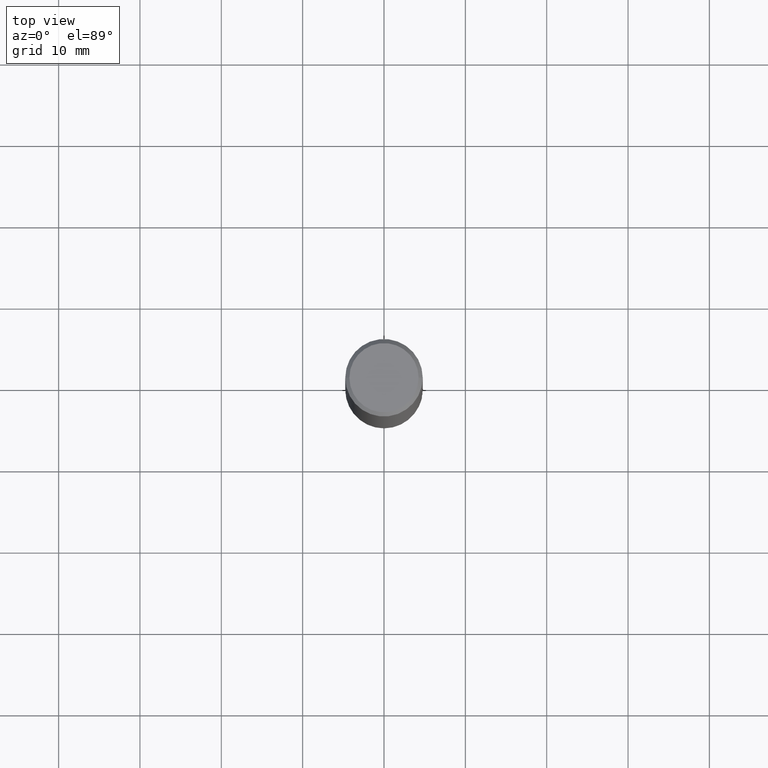
[diagram: clean part render]
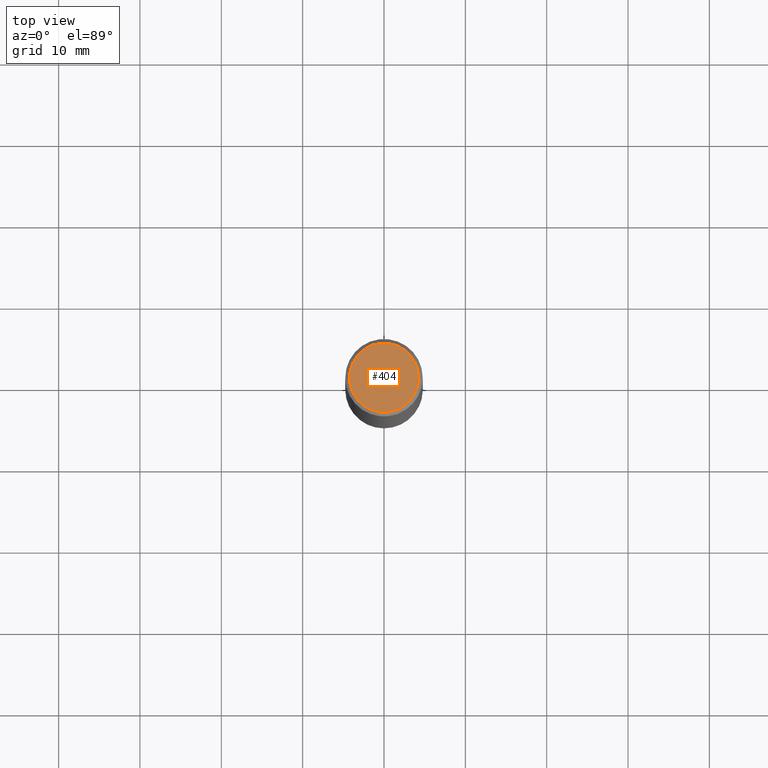
[diagram: same view with one face highlighted and labeled with its STEP entity id]
A machine part, top view. The second image highlights one B-rep face of the part: STEP entity #404.
In plain terms, the highlighted planar face has unit normal (0, -0, -1).
Its self-contained STEP definition (entity closure, byte-faithful):
#7 = EDGE_LOOP ( 'NONE', ( #280, #102 ) ) ;
#34 = EDGE_CURVE ( 'NONE', #309, #293, #227, .T. ) ;
#56 = DIRECTION ( 'NONE',  ( -1.000000000000000000, 6.982962677686265922E-15, -4.876176775795935793E-29 ) ) ;
#59 = CARTESIAN_POINT ( 'NONE',  ( -0.1675000000000001488, 1.204561061900881047E-15, -1.664719871139243568E-16 ) ) ;
#88 = CARTESIAN_POINT ( 'NONE',  ( 1.169646248512450581E-15, 0.1675000000000001488, -6.680591178131854845E-16 ) ) ;
#102 = ORIENTED_EDGE ( 'NONE', *, *, #113, .T. ) ;
#106 = DIRECTION ( 'NONE',  ( 1.000000000000000000, -6.982962677686266711E-15, 4.870844094865822268E-29 ) ) ;
#113 = EDGE_CURVE ( 'NONE', #293, #309, #281, .T. ) ;
#119 = CARTESIAN_POINT ( 'NONE',  ( 0.1675000000000001488, -1.252653207992879077E-15, -1.664719871139075689E-16 ) ) ;
#120 = DIRECTION ( 'NONE',  ( -2.445468806185136597E-29, 3.491481338843145583E-15, 1.000000000000000000 ) ) ;
#164 = PLANE ( 'NONE',  #277 ) ;
#169 = FACE_OUTER_BOUND ( 'NONE', #7, .T. ) ;
#191 = CARTESIAN_POINT ( 'NONE',  ( 4.071020515907357082E-45, -5.812338364483744108E-31, -1.664719871139160491E-16 ) ) ;
#227 = CIRCLE ( 'NONE', #346, 0.1675000000000001488 ) ;
#254 = DIRECTION ( 'NONE',  ( 1.000000000000000000, -6.982962677686266711E-15, 4.870844094865822268E-29 ) ) ;
#274 = CARTESIAN_POINT ( 'NONE',  ( 4.071020515907357082E-45, -5.812338364483744108E-31, -1.664719871139160491E-16 ) ) ;
#277 = AXIS2_PLACEMENT_3D ( 'NONE', #88, #348, #56 ) ;
#280 = ORIENTED_EDGE ( 'NONE', *, *, #34, .T. ) ;
#281 = CIRCLE ( 'NONE', #295, 0.1675000000000001488 ) ;
#293 = VERTEX_POINT ( 'NONE', #119 ) ;
#295 = AXIS2_PLACEMENT_3D ( 'NONE', #191, #120, #254 ) ;
#309 = VERTEX_POINT ( 'NONE', #59 ) ;
#346 = AXIS2_PLACEMENT_3D ( 'NONE', #274, #389, #106 ) ;
#348 = DIRECTION ( 'NONE',  ( 2.438088387897960049E-29, -3.491481338843145188E-15, -1.000000000000000000 ) ) ;
#389 = DIRECTION ( 'NONE',  ( -2.445468806185136597E-29, 3.491481338843145583E-15, 1.000000000000000000 ) ) ;
#404 = ADVANCED_FACE ( 'NONE', ( #169 ), #164, .F. ) ;